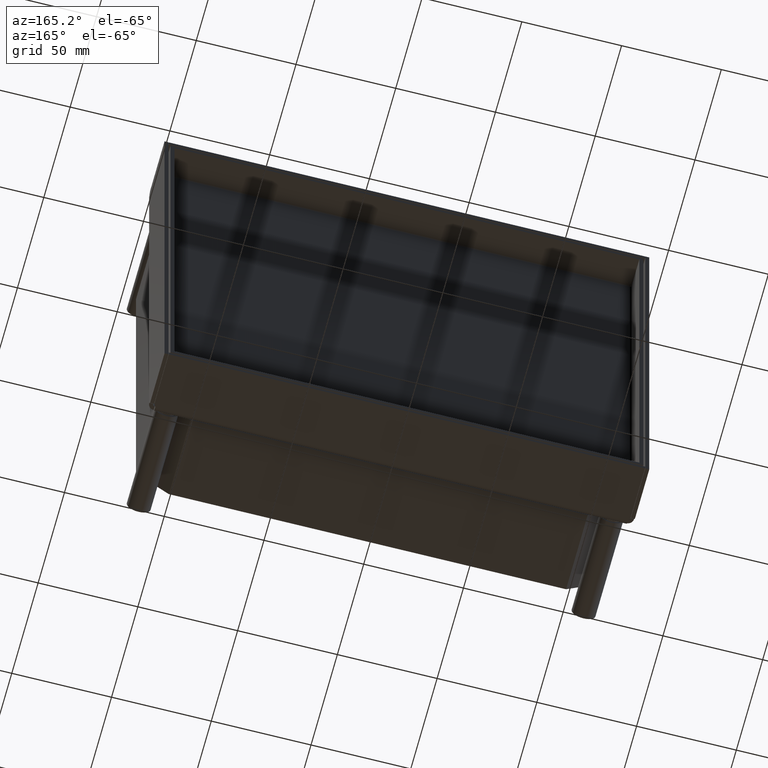
[diagram: clean part render]
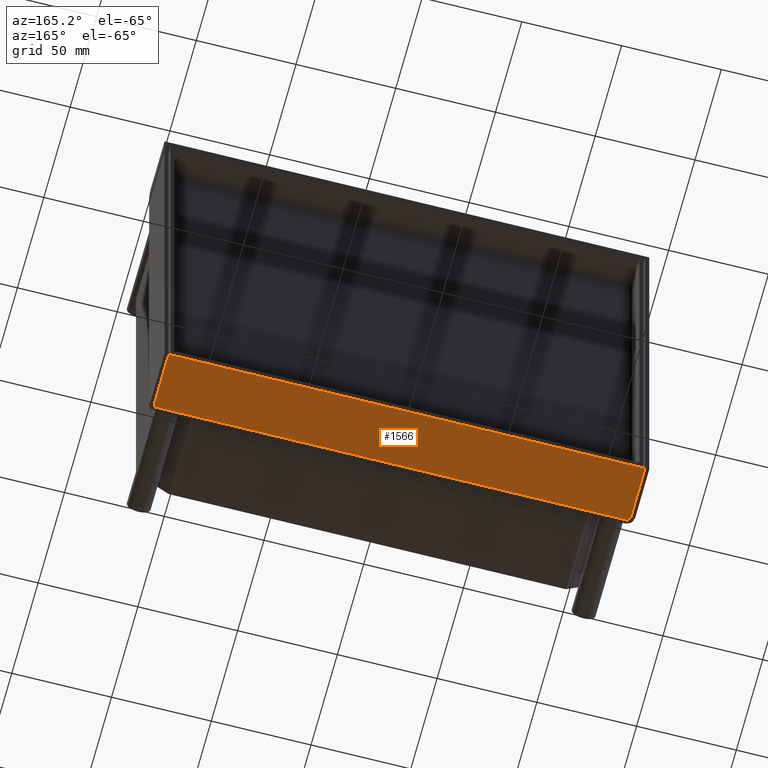
[diagram: same view with one face highlighted and labeled with its STEP entity id]
A machine part, auxiliary view. The second image highlights one B-rep face of the part: STEP entity #1566.
In plain terms, the highlighted planar face has unit normal (0, 0, -1).
Its self-contained STEP definition (entity closure, byte-faithful):
#573=DIRECTION('',(1.E0,0.E0,0.E0));
#574=VECTOR('',#573,2.388E2);
#575=CARTESIAN_POINT('',(-1.194E2,3.2E1,-1.215E2));
#576=LINE('',#575,#574);
#587=DIRECTION('',(4.610839676207E-1,8.873565094161E-1,0.E0));
#588=VECTOR('',#587,1.951922129594E0);
#589=CARTESIAN_POINT('',(1.185E2,3.E0,-1.215E2));
#590=LINE('',#589,#588);
#594=DIRECTION('',(0.E0,1.E0,0.E0));
#595=VECTOR('',#594,2.726794919243E1);
#596=CARTESIAN_POINT('',(1.194E2,4.732050807569E0,-1.215E2));
#597=LINE('',#596,#595);
#601=DIRECTION('',(0.E0,1.E0,0.E0));
#602=VECTOR('',#601,2.726794919243E1);
#603=CARTESIAN_POINT('',(-1.194E2,4.732050807569E0,-1.215E2));
#604=LINE('',#603,#602);
#608=DIRECTION('',(-4.610839676207E-1,8.873565094161E-1,0.E0));
#609=VECTOR('',#608,1.951922129594E0);
#610=CARTESIAN_POINT('',(-1.185E2,3.E0,-1.215E2));
#611=LINE('',#610,#609);
#630=DIRECTION('',(-1.E0,0.E0,0.E0));
#631=VECTOR('',#630,2.37E2);
#632=CARTESIAN_POINT('',(1.185E2,3.E0,-1.215E2));
#633=LINE('',#632,#631);
#1149=CARTESIAN_POINT('',(-1.185E2,3.E0,-1.215E2));
#1150=CARTESIAN_POINT('',(-1.194E2,4.732050807569E0,-1.215E2));
#1151=VERTEX_POINT('',#1149);
#1152=VERTEX_POINT('',#1150);
#1153=CARTESIAN_POINT('',(-1.194E2,3.2E1,-1.215E2));
#1154=VERTEX_POINT('',#1153);
#1205=CARTESIAN_POINT('',(1.185E2,3.E0,-1.215E2));
#1206=CARTESIAN_POINT('',(1.194E2,4.732050807569E0,-1.215E2));
#1207=VERTEX_POINT('',#1205);
#1208=VERTEX_POINT('',#1206);
#1209=CARTESIAN_POINT('',(1.194E2,3.2E1,-1.215E2));
#1210=VERTEX_POINT('',#1209);
#1548=CARTESIAN_POINT('',(-2.81556E1,0.E0,-1.215E2));
#1549=DIRECTION('',(0.E0,0.E0,-1.E0));
#1550=DIRECTION('',(-1.E0,0.E0,0.E0));
#1551=AXIS2_PLACEMENT_3D('',#1548,#1549,#1550);
#1552=PLANE('',#1551);
#1554=ORIENTED_EDGE('',*,*,#1553,.F.);
#1556=ORIENTED_EDGE('',*,*,#1555,.T.);
#1558=ORIENTED_EDGE('',*,*,#1557,.T.);
#1559=ORIENTED_EDGE('',*,*,#1538,.F.);
#1561=ORIENTED_EDGE('',*,*,#1560,.F.);
#1563=ORIENTED_EDGE('',*,*,#1562,.F.);
#1564=EDGE_LOOP('',(#1554,#1556,#1558,#1559,#1561,#1563));
#1565=FACE_OUTER_BOUND('',#1564,.F.);
#1538=EDGE_CURVE('',#1154,#1210,#576,.T.);
#1553=EDGE_CURVE('',#1207,#1151,#633,.T.);
#1555=EDGE_CURVE('',#1207,#1208,#590,.T.);
#1557=EDGE_CURVE('',#1208,#1210,#597,.T.);
#1560=EDGE_CURVE('',#1152,#1154,#604,.T.);
#1562=EDGE_CURVE('',#1151,#1152,#611,.T.);
#1566=ADVANCED_FACE('',(#1565),#1552,.T.);